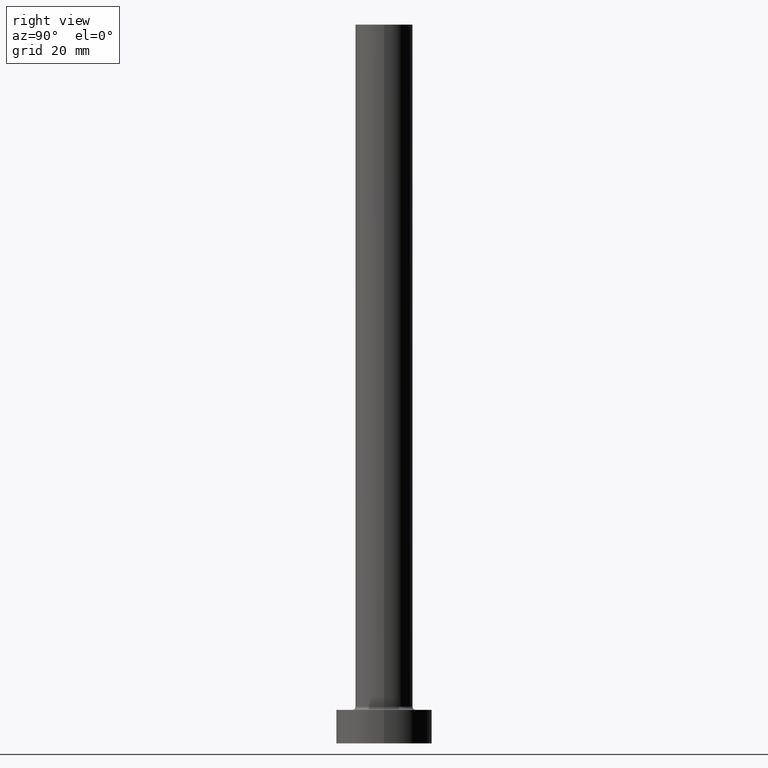
[diagram: clean part render]
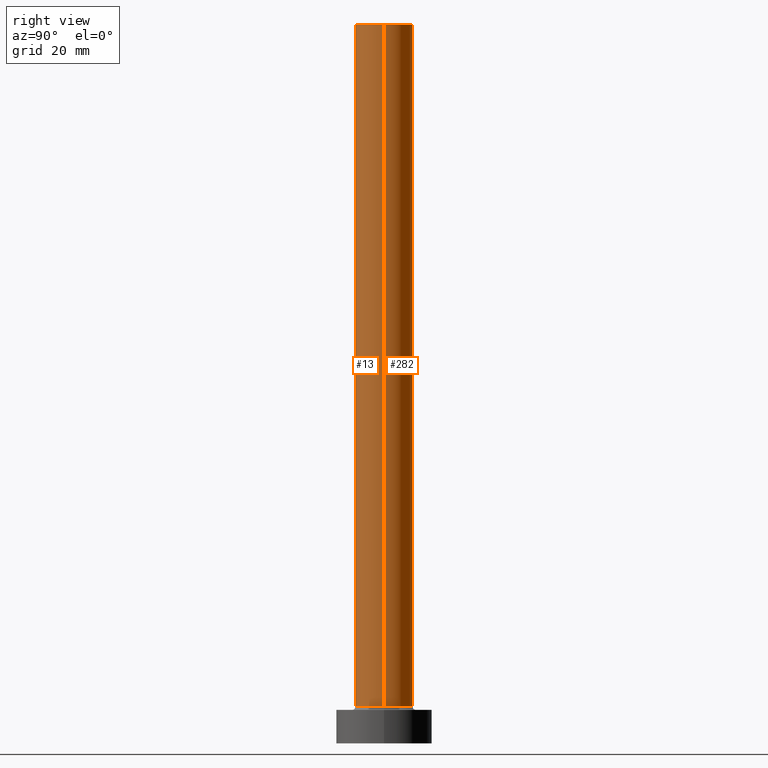
[diagram: same view with one multi-face feature highlighted, each face labeled with its STEP entity id]
A machine part, right view. The highlighted faces form ONE feature: a constant-radius fillet chain: 2 tangent blend faces with common blend radius 6 mm. The faces share edges in the B-rep.
Their STEP definitions:
[1] entity #13 (Cylinder):
#10 = ORIENTED_EDGE ( 'NONE', *, *, #374, .T. ) ;
#13 = ADVANCED_FACE ( 'NONE', ( #167 ), #26, .T. ) ;
#26 = CYLINDRICAL_SURFACE ( 'NONE', #69, 6.000000000000000888 ) ;
#39 = DIRECTION ( 'NONE',  ( 1.000000000000000000, 0.000000000000000000, 0.000000000000000000 ) ) ;
#58 = AXIS2_PLACEMENT_3D ( 'NONE', #214, #364, #39 ) ;
#66 = CARTESIAN_POINT ( 'NONE',  ( 6.000000000000000888, 7.347880794884120722E-16, 150.0000000000000000 ) ) ;
#69 = AXIS2_PLACEMENT_3D ( 'NONE', #164, #161, #345 ) ;
#70 = DIRECTION ( 'NONE',  ( -0.000000000000000000, -0.000000000000000000, -1.000000000000000000 ) ) ;
#76 = CARTESIAN_POINT ( 'NONE',  ( 0.000000000000000000, 0.000000000000000000, 150.0000000000000000 ) ) ;
#91 = AXIS2_PLACEMENT_3D ( 'NONE', #76, #432, #111 ) ;
#97 = ORIENTED_EDGE ( 'NONE', *, *, #368, .F. ) ;
#111 = DIRECTION ( 'NONE',  ( 1.000000000000000000, 0.000000000000000000, 0.000000000000000000 ) ) ;
#148 = LINE ( 'NONE', #365, #313 ) ;
#152 = EDGE_LOOP ( 'NONE', ( #375, #97, #159, #10 ) ) ;
#156 = VERTEX_POINT ( 'NONE', #285 ) ;
#159 = ORIENTED_EDGE ( 'NONE', *, *, #265, .T. ) ;
#161 = DIRECTION ( 'NONE',  ( -0.000000000000000000, -0.000000000000000000, -1.000000000000000000 ) ) ;
#164 = CARTESIAN_POINT ( 'NONE',  ( 0.000000000000000000, 0.000000000000000000, 150.0000000000000000 ) ) ;
#167 = FACE_OUTER_BOUND ( 'NONE', #152, .T. ) ;
#182 = CARTESIAN_POINT ( 'NONE',  ( -6.000000000000000888, 0.000000000000000000, 150.0000000000000000 ) ) ;
#185 = DIRECTION ( 'NONE',  ( -0.000000000000000000, -0.000000000000000000, -1.000000000000000000 ) ) ;
#208 = EDGE_CURVE ( 'NONE', #156, #408, #317, .T. ) ;
#214 = CARTESIAN_POINT ( 'NONE',  ( 0.000000000000000000, 0.000000000000000000, 7.700000000000012612 ) ) ;
#255 = CIRCLE ( 'NONE', #91, 6.000000000000000888 ) ;
#263 = VERTEX_POINT ( 'NONE', #330 ) ;
#265 = EDGE_CURVE ( 'NONE', #349, #263, #148, .T. ) ;
#285 = CARTESIAN_POINT ( 'NONE',  ( 6.000000000000000888, 7.347880794884120722E-16, 150.0000000000000000 ) ) ;
#313 = VECTOR ( 'NONE', #185, 1000.000000000000000 ) ;
#317 = LINE ( 'NONE', #66, #386 ) ;
#319 = CARTESIAN_POINT ( 'NONE',  ( 6.000000000000000888, 7.347880794884120722E-16, 7.700000000000012612 ) ) ;
#330 = CARTESIAN_POINT ( 'NONE',  ( -6.000000000000000888, 0.000000000000000000, 7.700000000000012612 ) ) ;
#345 = DIRECTION ( 'NONE',  ( -1.000000000000000000, 0.000000000000000000, 0.000000000000000000 ) ) ;
#349 = VERTEX_POINT ( 'NONE', #182 ) ;
#364 = DIRECTION ( 'NONE',  ( 0.000000000000000000, 0.000000000000000000, 1.000000000000000000 ) ) ;
#365 = CARTESIAN_POINT ( 'NONE',  ( -6.000000000000000888, 0.000000000000000000, 150.0000000000000000 ) ) ;
#368 = EDGE_CURVE ( 'NONE', #349, #156, #255, .T. ) ;
#374 = EDGE_CURVE ( 'NONE', #263, #408, #394, .T. ) ;
#375 = ORIENTED_EDGE ( 'NONE', *, *, #208, .F. ) ;
#386 = VECTOR ( 'NONE', #70, 1000.000000000000000 ) ;
#394 = CIRCLE ( 'NONE', #58, 6.000000000000000888 ) ;
#408 = VERTEX_POINT ( 'NONE', #319 ) ;
#432 = DIRECTION ( 'NONE',  ( 0.000000000000000000, 0.000000000000000000, 1.000000000000000000 ) ) ;
[2] entity #282 (Cylinder):
#5 = DIRECTION ( 'NONE',  ( 1.000000000000000000, 0.000000000000000000, 0.000000000000000000 ) ) ;
#7 = DIRECTION ( 'NONE',  ( 1.000000000000000000, 0.000000000000000000, 0.000000000000000000 ) ) ;
#14 = AXIS2_PLACEMENT_3D ( 'NONE', #224, #112, #7 ) ;
#25 = EDGE_LOOP ( 'NONE', ( #222, #219, #170, #88 ) ) ;
#41 = DIRECTION ( 'NONE',  ( 0.000000000000000000, 0.000000000000000000, 1.000000000000000000 ) ) ;
#45 = DIRECTION ( 'NONE',  ( -0.000000000000000000, -0.000000000000000000, -1.000000000000000000 ) ) ;
#66 = CARTESIAN_POINT ( 'NONE',  ( 6.000000000000000888, 7.347880794884120722E-16, 150.0000000000000000 ) ) ;
#70 = DIRECTION ( 'NONE',  ( -0.000000000000000000, -0.000000000000000000, -1.000000000000000000 ) ) ;
#82 = FACE_OUTER_BOUND ( 'NONE', #25, .T. ) ;
#85 = AXIS2_PLACEMENT_3D ( 'NONE', #267, #45, #143 ) ;
#88 = ORIENTED_EDGE ( 'NONE', *, *, #265, .F. ) ;
#112 = DIRECTION ( 'NONE',  ( 0.000000000000000000, 0.000000000000000000, 1.000000000000000000 ) ) ;
#132 = AXIS2_PLACEMENT_3D ( 'NONE', #328, #41, #5 ) ;
#143 = DIRECTION ( 'NONE',  ( -1.000000000000000000, 0.000000000000000000, 0.000000000000000000 ) ) ;
#148 = LINE ( 'NONE', #365, #313 ) ;
#153 = CYLINDRICAL_SURFACE ( 'NONE', #85, 6.000000000000000888 ) ;
#156 = VERTEX_POINT ( 'NONE', #285 ) ;
#170 = ORIENTED_EDGE ( 'NONE', *, *, #435, .T. ) ;
#182 = CARTESIAN_POINT ( 'NONE',  ( -6.000000000000000888, 0.000000000000000000, 150.0000000000000000 ) ) ;
#185 = DIRECTION ( 'NONE',  ( -0.000000000000000000, -0.000000000000000000, -1.000000000000000000 ) ) ;
#208 = EDGE_CURVE ( 'NONE', #156, #408, #317, .T. ) ;
#219 = ORIENTED_EDGE ( 'NONE', *, *, #208, .T. ) ;
#222 = ORIENTED_EDGE ( 'NONE', *, *, #259, .F. ) ;
#224 = CARTESIAN_POINT ( 'NONE',  ( 0.000000000000000000, 0.000000000000000000, 7.700000000000012612 ) ) ;
#259 = EDGE_CURVE ( 'NONE', #156, #349, #264, .T. ) ;
#263 = VERTEX_POINT ( 'NONE', #330 ) ;
#264 = CIRCLE ( 'NONE', #132, 6.000000000000000888 ) ;
#265 = EDGE_CURVE ( 'NONE', #349, #263, #148, .T. ) ;
#267 = CARTESIAN_POINT ( 'NONE',  ( 0.000000000000000000, 0.000000000000000000, 150.0000000000000000 ) ) ;
#282 = ADVANCED_FACE ( 'NONE', ( #82 ), #153, .T. ) ;
#285 = CARTESIAN_POINT ( 'NONE',  ( 6.000000000000000888, 7.347880794884120722E-16, 150.0000000000000000 ) ) ;
#313 = VECTOR ( 'NONE', #185, 1000.000000000000000 ) ;
#317 = LINE ( 'NONE', #66, #386 ) ;
#319 = CARTESIAN_POINT ( 'NONE',  ( 6.000000000000000888, 7.347880794884120722E-16, 7.700000000000012612 ) ) ;
#328 = CARTESIAN_POINT ( 'NONE',  ( 0.000000000000000000, 0.000000000000000000, 150.0000000000000000 ) ) ;
#330 = CARTESIAN_POINT ( 'NONE',  ( -6.000000000000000888, 0.000000000000000000, 7.700000000000012612 ) ) ;
#349 = VERTEX_POINT ( 'NONE', #182 ) ;
#365 = CARTESIAN_POINT ( 'NONE',  ( -6.000000000000000888, 0.000000000000000000, 150.0000000000000000 ) ) ;
#386 = VECTOR ( 'NONE', #70, 1000.000000000000000 ) ;
#408 = VERTEX_POINT ( 'NONE', #319 ) ;
#435 = EDGE_CURVE ( 'NONE', #408, #263, #439, .T. ) ;
#439 = CIRCLE ( 'NONE', #14, 6.000000000000000888 ) ;